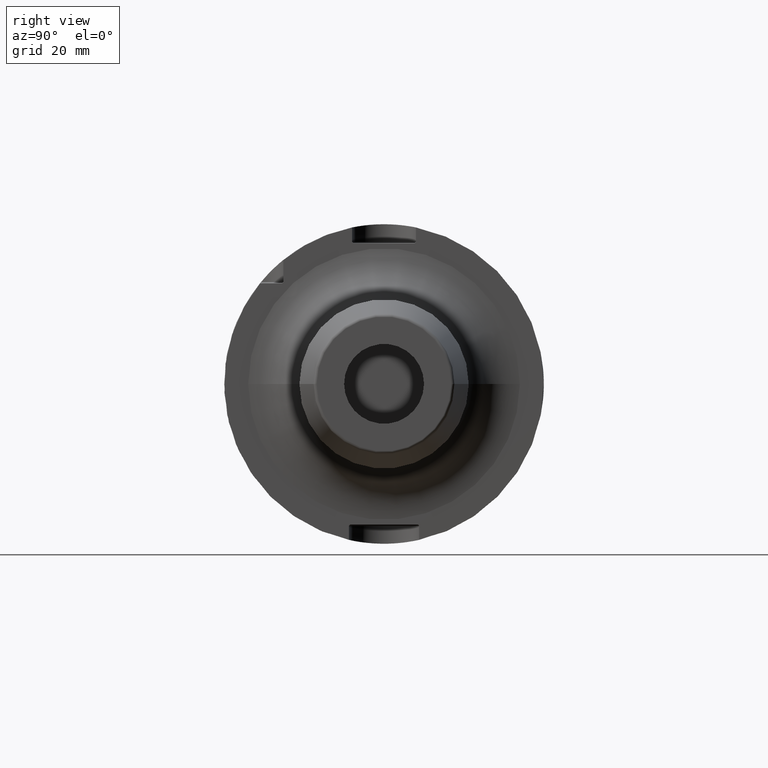
[diagram: clean part render]
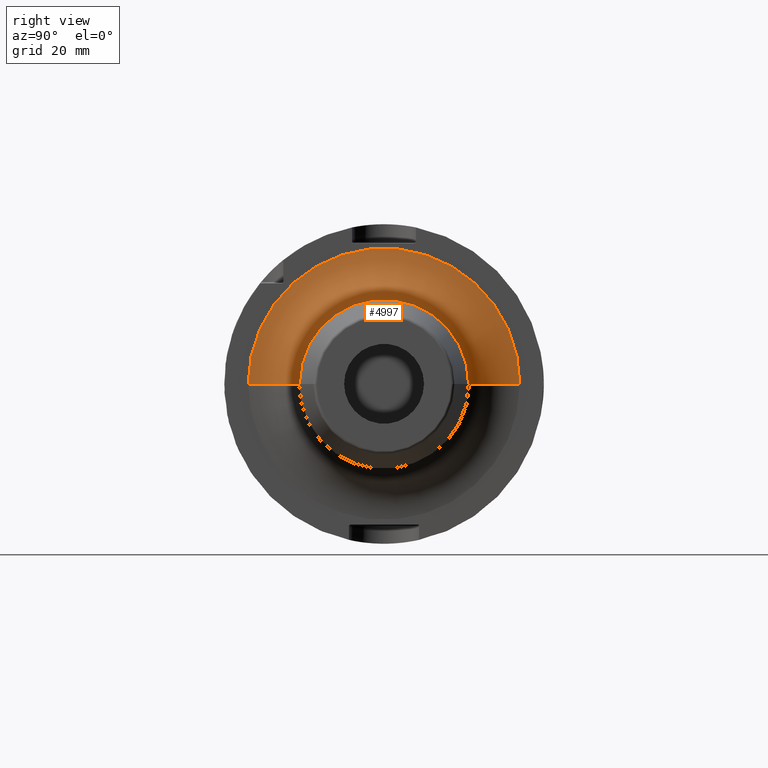
[diagram: same view with one face highlighted and labeled with its STEP entity id]
A machine part, right view. The second image highlights one B-rep face of the part: STEP entity #4997.
In plain terms, the highlighted toroidal blend (fillet) surface has major radius 42.5 mm and minor (blend) radius 16 mm.
Its self-contained STEP definition (entity closure, byte-faithful):
#1096=CARTESIAN_POINT('',(2.9E1,0.E0,0.E0));
#1097=DIRECTION('',(1.E0,0.E0,0.E0));
#1098=DIRECTION('',(0.E0,1.E0,0.E0));
#1099=AXIS2_PLACEMENT_3D('',#1096,#1097,#1098);
#1810=CARTESIAN_POINT('',(4.5E1,-4.25E1,3.548966676092E-13));
#1811=DIRECTION('',(0.E0,0.E0,-1.E0));
#1812=DIRECTION('',(-1.E0,0.E0,0.E0));
#1813=AXIS2_PLACEMENT_3D('',#1810,#1811,#1812);
#1815=CARTESIAN_POINT('',(4.5E1,4.25E1,-3.594485820102E-13));
#1816=DIRECTION('',(0.E0,0.E0,1.E0));
#1817=DIRECTION('',(-1.E0,0.E0,0.E0));
#1818=AXIS2_PLACEMENT_3D('',#1815,#1816,#1817);
#1820=CARTESIAN_POINT('',(4.5E1,0.E0,0.E0));
#1821=DIRECTION('',(1.E0,0.E0,0.E0));
#1822=DIRECTION('',(0.E0,1.E0,0.E0));
#1823=AXIS2_PLACEMENT_3D('',#1820,#1821,#1822);
#3137=CARTESIAN_POINT('',(2.9E1,-4.25E1,-1.040949779275E-14));
#3138=CARTESIAN_POINT('',(2.9E1,4.25E1,0.E0));
#3139=VERTEX_POINT('',#3137);
#3140=VERTEX_POINT('',#3138);
#3141=CARTESIAN_POINT('',(4.5E1,-2.65E1,0.E0));
#3142=CARTESIAN_POINT('',(4.5E1,2.65E1,0.E0));
#3143=VERTEX_POINT('',#3141);
#3144=VERTEX_POINT('',#3142);
#4985=CARTESIAN_POINT('',(4.5E1,0.E0,0.E0));
#4986=DIRECTION('',(1.E0,0.E0,0.E0));
#4987=DIRECTION('',(0.E0,9.999957912814E-1,-2.901278948639E-3));
#4988=AXIS2_PLACEMENT_3D('',#4985,#4986,#4987);
#4989=TOROIDAL_SURFACE('',#4988,4.25E1,1.6E1);
#4990=ORIENTED_EDGE('',*,*,#4252,.F.);
#4991=ORIENTED_EDGE('',*,*,#4980,.T.);
#4993=ORIENTED_EDGE('',*,*,#4992,.T.);
#4994=ORIENTED_EDGE('',*,*,#4976,.F.);
#4995=EDGE_LOOP('',(#4990,#4991,#4993,#4994));
#4996=FACE_OUTER_BOUND('',#4995,.F.);
#4997=ADVANCED_FACE('',(#4996),#4989,.F.);
#1100=CIRCLE('',#1099,4.25E1);
#1814=CIRCLE('',#1813,1.6E1);
#1819=CIRCLE('',#1818,1.6E1);
#1824=CIRCLE('',#1823,2.65E1);
#4252=EDGE_CURVE('',#3140,#3139,#1100,.T.);
#4976=EDGE_CURVE('',#3139,#3143,#1814,.T.);
#4980=EDGE_CURVE('',#3140,#3144,#1819,.T.);
#4992=EDGE_CURVE('',#3144,#3143,#1824,.T.);